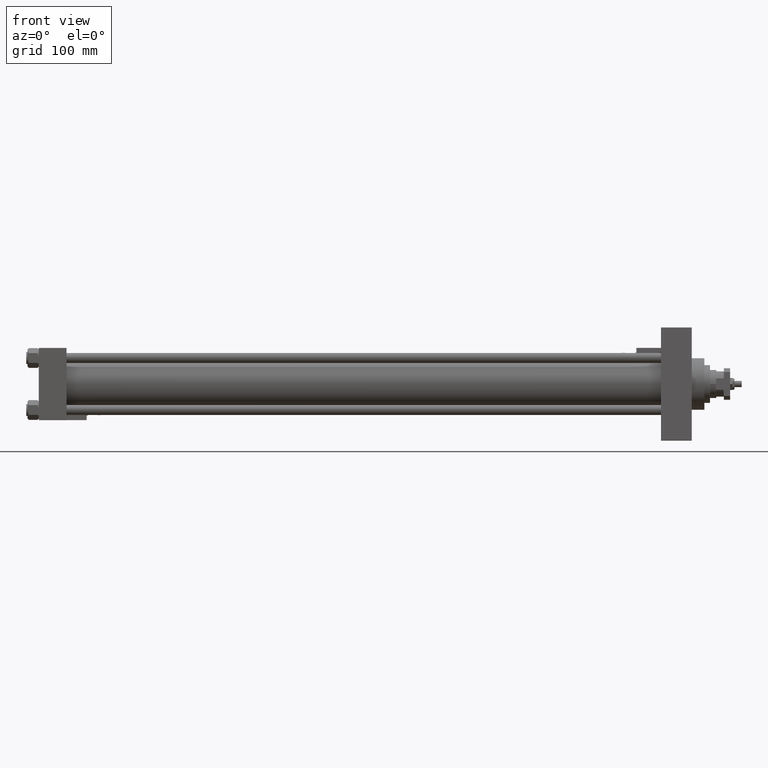
[diagram: clean part render]
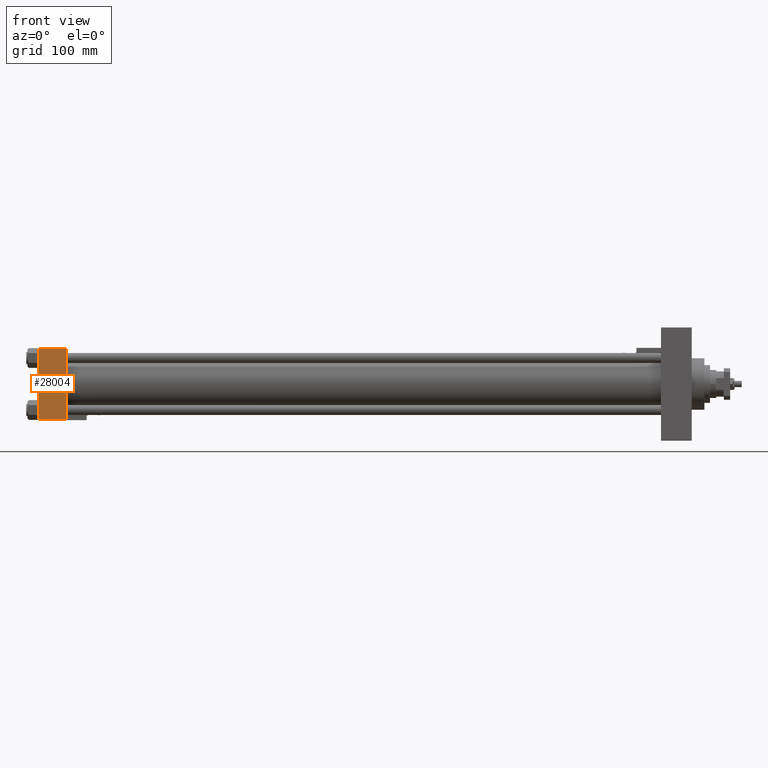
[diagram: same view with one face highlighted and labeled with its STEP entity id]
A machine part, front view. The second image highlights one B-rep face of the part: STEP entity #28004.
In plain terms, the highlighted planar face has unit normal (0, 1, 0).
Its self-contained STEP definition (entity closure, byte-faithful):
#583 = CARTESIAN_POINT ( 'NONE',  ( 0.000000000000000000, -57.50000000000000000, 56.99999999999997868 ) ) ;
#593 = EDGE_CURVE ( 'NONE', #39737, #46568, #52899, .T. ) ;
#1407 = CARTESIAN_POINT ( 'NONE',  ( 0.000000000000000000, -57.49999999999999289, -57.00000000000003553 ) ) ;
#1749 = LINE ( 'NONE', #44703, #44667 ) ;
#1765 = VECTOR ( 'NONE', #32592, 1000.000000000000000 ) ;
#2026 = ORIENTED_EDGE ( 'NONE', *, *, #28711, .T. ) ;
#2888 = VECTOR ( 'NONE', #53574, 1000.000000000000000 ) ;
#4651 = ORIENTED_EDGE ( 'NONE', *, *, #593, .T. ) ;
#5227 = DIRECTION ( 'NONE',  ( 0.000000000000000000, -6.033820786006285224E-17, 1.000000000000000000 ) ) ;
#8777 = EDGE_CURVE ( 'NONE', #46568, #12238, #1749, .T. ) ;
#12238 = VERTEX_POINT ( 'NONE', #1407 ) ;
#12552 = ORIENTED_EDGE ( 'NONE', *, *, #8777, .T. ) ;
#12895 = VECTOR ( 'NONE', #48958, 1000.000000000000000 ) ;
#13244 = LINE ( 'NONE', #30646, #1765 ) ;
#18644 = CARTESIAN_POINT ( 'NONE',  ( 44.00000000000000000, -57.50000000000000000, 56.99999999999997868 ) ) ;
#18701 = AXIS2_PLACEMENT_3D ( 'NONE', #23457, #39498, #5227 ) ;
#19035 = CARTESIAN_POINT ( 'NONE',  ( 44.00000000000000000, -57.50000000000000000, 57.49999999999999289 ) ) ;
#23457 = CARTESIAN_POINT ( 'NONE',  ( 44.00000000000000000, -57.50000000000000000, 57.49999999999999289 ) ) ;
#25504 = ORIENTED_EDGE ( 'NONE', *, *, #34529, .F. ) ;
#28004 = ADVANCED_FACE ( 'NONE', ( #44527 ), #48452, .F. ) ;
#28711 = EDGE_CURVE ( 'NONE', #12238, #51622, #13244, .T. ) ;
#28950 = DIRECTION ( 'NONE',  ( 0.000000000000000000, 6.033820786006285224E-17, -1.000000000000000000 ) ) ;
#29403 = CARTESIAN_POINT ( 'NONE',  ( 44.00000000000000000, -57.49999999999999289, -57.00000000000003553 ) ) ;
#30646 = CARTESIAN_POINT ( 'NONE',  ( 44.00000000000000000, -57.49999999999999289, -57.00000000000003553 ) ) ;
#32592 = DIRECTION ( 'NONE',  ( 1.000000000000000000, 0.000000000000000000, 0.000000000000000000 ) ) ;
#34529 = EDGE_CURVE ( 'NONE', #39737, #51622, #45987, .T. ) ;
#36467 = CARTESIAN_POINT ( 'NONE',  ( 44.00000000000000000, -57.50000000000000000, 56.99999999999997868 ) ) ;
#38466 = EDGE_LOOP ( 'NONE', ( #12552, #2026, #25504, #4651 ) ) ;
#39498 = DIRECTION ( 'NONE',  ( -0.000000000000000000, 1.000000000000000000, 6.033820786006285224E-17 ) ) ;
#39737 = VERTEX_POINT ( 'NONE', #36467 ) ;
#44527 = FACE_OUTER_BOUND ( 'NONE', #38466, .T. ) ;
#44667 = VECTOR ( 'NONE', #28950, 1000.000000000000000 ) ;
#44703 = CARTESIAN_POINT ( 'NONE',  ( 0.000000000000000000, -57.50000000000000000, 57.49999999999999289 ) ) ;
#45987 = LINE ( 'NONE', #19035, #2888 ) ;
#46568 = VERTEX_POINT ( 'NONE', #583 ) ;
#48452 = PLANE ( 'NONE',  #18701 ) ;
#48958 = DIRECTION ( 'NONE',  ( -1.000000000000000000, 0.000000000000000000, 0.000000000000000000 ) ) ;
#51622 = VERTEX_POINT ( 'NONE', #29403 ) ;
#52899 = LINE ( 'NONE', #18644, #12895 ) ;
#53574 = DIRECTION ( 'NONE',  ( 0.000000000000000000, 6.033820786006285224E-17, -1.000000000000000000 ) ) ;